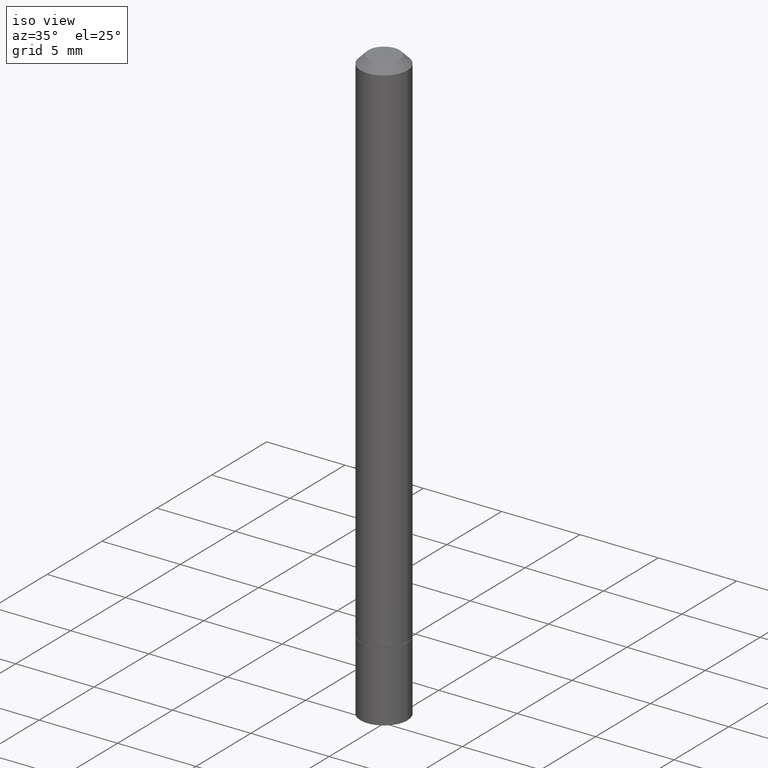
[diagram: clean part render]
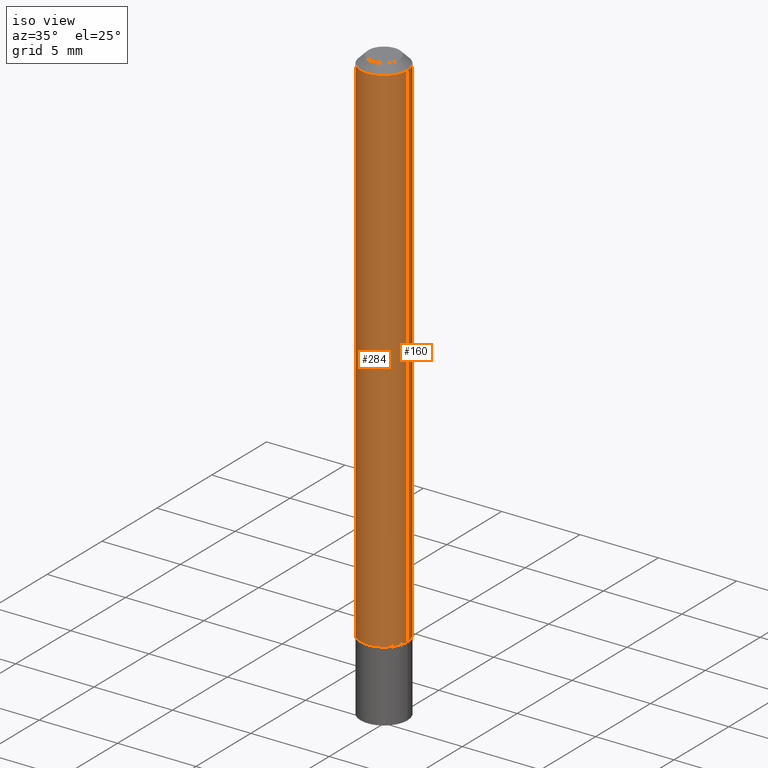
[diagram: same view with one multi-face feature highlighted, each face labeled with its STEP entity id]
A machine part, iso view. The highlighted faces form ONE feature: a constant-radius fillet chain: 2 tangent blend faces with common blend radius 1.4999 mm. The faces share edges in the B-rep.
Their STEP definitions:
[1] entity #284 (Cylinder):
#8 = LINE ( 'NONE', #319, #134 ) ;
#9 = DIRECTION ( 'NONE',  ( -2.445468806185136877E-29, 3.491481338843145188E-15, 1.000000000000000000 ) ) ;
#32 = ORIENTED_EDGE ( 'NONE', *, *, #91, .F. ) ;
#33 = ORIENTED_EDGE ( 'NONE', *, *, #271, .T. ) ;
#47 = EDGE_CURVE ( 'NONE', #96, #73, #67, .T. ) ;
#51 = CARTESIAN_POINT ( 'NONE',  ( 0.000000000000000000, 0.000000000000000000, 0.000000000000000000 ) ) ;
#67 = LINE ( 'NONE', #326, #111 ) ;
#72 = CIRCLE ( 'NONE', #148, 0.05904999999999999832 ) ;
#73 = VERTEX_POINT ( 'NONE', #294 ) ;
#76 = CARTESIAN_POINT ( 'NONE',  ( 0.05904999999999999832, -5.013767202578754676E-15, -1.317899999999999627 ) ) ;
#80 = CIRCLE ( 'NONE', #282, 0.05904999999999994975 ) ;
#91 = EDGE_CURVE ( 'NONE', #73, #128, #80, .T. ) ;
#96 = VERTEX_POINT ( 'NONE', #249 ) ;
#107 = DIRECTION ( 'NONE',  ( 1.000000000000000000, -6.982962677686266711E-15, 0.000000000000000000 ) ) ;
#111 = VECTOR ( 'NONE', #9, 39.37007874015748143 ) ;
#114 = AXIS2_PLACEMENT_3D ( 'NONE', #51, #269, #122 ) ;
#120 = DIRECTION ( 'NONE',  ( -2.445468806185136877E-29, 3.491481338843145188E-15, 1.000000000000000000 ) ) ;
#121 = VERTEX_POINT ( 'NONE', #76 ) ;
#122 = DIRECTION ( 'NONE',  ( 1.000000000000000000, -6.982962677686267499E-15, 4.876176775795936353E-29 ) ) ;
#128 = VERTEX_POINT ( 'NONE', #164 ) ;
#132 = DIRECTION ( 'NONE',  ( 1.000000000000000000, -6.982962677686273021E-15, 0.000000000000000000 ) ) ;
#134 = VECTOR ( 'NONE', #120, 39.37007874015748143 ) ;
#144 = EDGE_LOOP ( 'NONE', ( #204, #33, #281, #32 ) ) ;
#148 = AXIS2_PLACEMENT_3D ( 'NONE', #219, #298, #132 ) ;
#164 = CARTESIAN_POINT ( 'NONE',  ( 0.05904999999999994975, -4.749420335452716734E-16, -0.02000000000000006287 ) ) ;
#184 = CARTESIAN_POINT ( 'NONE',  ( 4.890937612370288923E-31, -6.982962677686312563E-17, -0.02000000000000006287 ) ) ;
#189 = FACE_OUTER_BOUND ( 'NONE', #144, .T. ) ;
#204 = ORIENTED_EDGE ( 'NONE', *, *, #47, .F. ) ;
#219 = CARTESIAN_POINT ( 'NONE',  ( 3.222883339671390452E-29, -4.601423256461380545E-15, -1.317899999999999627 ) ) ;
#249 = CARTESIAN_POINT ( 'NONE',  ( -0.05904999999999999832, -1.916050956152782034E-15, -1.317899999999999627 ) ) ;
#269 = DIRECTION ( 'NONE',  ( -2.445468806185136597E-29, 3.491481338843145583E-15, 1.000000000000000000 ) ) ;
#271 = EDGE_CURVE ( 'NONE', #96, #121, #72, .T. ) ;
#281 = ORIENTED_EDGE ( 'NONE', *, *, #328, .T. ) ;
#282 = AXIS2_PLACEMENT_3D ( 'NONE', #184, #295, #107 ) ;
#284 = ADVANCED_FACE ( 'NONE', ( #189 ), #316, .T. ) ;
#294 = CARTESIAN_POINT ( 'NONE',  ( -0.05904999999999994975, 3.425143193405105373E-16, -0.02000000000000006287 ) ) ;
#295 = DIRECTION ( 'NONE',  ( -2.445468806185136597E-29, 3.491481338843145583E-15, 1.000000000000000000 ) ) ;
#298 = DIRECTION ( 'NONE',  ( -2.445468806185136597E-29, 3.491481338843145583E-15, 1.000000000000000000 ) ) ;
#316 = CYLINDRICAL_SURFACE ( 'NONE', #114, 0.05904999999999997057 ) ;
#319 = CARTESIAN_POINT ( 'NONE',  ( 0.05904999999999997057, -4.123439461173738848E-16, 2.879382386107498819E-30 ) ) ;
#326 = CARTESIAN_POINT ( 'NONE',  ( -0.05904999999999997057, 4.195754854663389506E-16, -2.904631170795520841E-30 ) ) ;
#328 = EDGE_CURVE ( 'NONE', #121, #128, #8, .T. ) ;
[2] entity #160 (Cylinder):
#6 = EDGE_LOOP ( 'NONE', ( #256, #145, #141, #150 ) ) ;
#8 = LINE ( 'NONE', #319, #134 ) ;
#9 = DIRECTION ( 'NONE',  ( -2.445468806185136877E-29, 3.491481338843145188E-15, 1.000000000000000000 ) ) ;
#41 = CARTESIAN_POINT ( 'NONE',  ( 0.000000000000000000, 0.000000000000000000, 0.000000000000000000 ) ) ;
#44 = AXIS2_PLACEMENT_3D ( 'NONE', #179, #216, #49 ) ;
#47 = EDGE_CURVE ( 'NONE', #96, #73, #67, .T. ) ;
#49 = DIRECTION ( 'NONE',  ( 1.000000000000000000, -6.982962677686266711E-15, 0.000000000000000000 ) ) ;
#63 = AXIS2_PLACEMENT_3D ( 'NONE', #41, #265, #66 ) ;
#66 = DIRECTION ( 'NONE',  ( 1.000000000000000000, -6.982962677686267499E-15, 4.876176775795936353E-29 ) ) ;
#67 = LINE ( 'NONE', #326, #111 ) ;
#73 = VERTEX_POINT ( 'NONE', #294 ) ;
#74 = AXIS2_PLACEMENT_3D ( 'NONE', #250, #297, #166 ) ;
#76 = CARTESIAN_POINT ( 'NONE',  ( 0.05904999999999999832, -5.013767202578754676E-15, -1.317899999999999627 ) ) ;
#96 = VERTEX_POINT ( 'NONE', #249 ) ;
#111 = VECTOR ( 'NONE', #9, 39.37007874015748143 ) ;
#120 = DIRECTION ( 'NONE',  ( -2.445468806185136877E-29, 3.491481338843145188E-15, 1.000000000000000000 ) ) ;
#121 = VERTEX_POINT ( 'NONE', #76 ) ;
#128 = VERTEX_POINT ( 'NONE', #164 ) ;
#134 = VECTOR ( 'NONE', #120, 39.37007874015748143 ) ;
#141 = ORIENTED_EDGE ( 'NONE', *, *, #255, .F. ) ;
#143 = CIRCLE ( 'NONE', #74, 0.05904999999999999832 ) ;
#145 = ORIENTED_EDGE ( 'NONE', *, *, #47, .T. ) ;
#150 = ORIENTED_EDGE ( 'NONE', *, *, #328, .F. ) ;
#160 = ADVANCED_FACE ( 'NONE', ( #252 ), #182, .T. ) ;
#164 = CARTESIAN_POINT ( 'NONE',  ( 0.05904999999999994975, -4.749420335452716734E-16, -0.02000000000000006287 ) ) ;
#166 = DIRECTION ( 'NONE',  ( 1.000000000000000000, -6.982962677686273021E-15, 0.000000000000000000 ) ) ;
#179 = CARTESIAN_POINT ( 'NONE',  ( 4.890937612370288923E-31, -6.982962677686312563E-17, -0.02000000000000006287 ) ) ;
#182 = CYLINDRICAL_SURFACE ( 'NONE', #63, 0.05904999999999997057 ) ;
#201 = CIRCLE ( 'NONE', #44, 0.05904999999999994975 ) ;
#216 = DIRECTION ( 'NONE',  ( -2.445468806185136597E-29, 3.491481338843145583E-15, 1.000000000000000000 ) ) ;
#249 = CARTESIAN_POINT ( 'NONE',  ( -0.05904999999999999832, -1.916050956152782034E-15, -1.317899999999999627 ) ) ;
#250 = CARTESIAN_POINT ( 'NONE',  ( 3.222883339671390452E-29, -4.601423256461380545E-15, -1.317899999999999627 ) ) ;
#252 = FACE_OUTER_BOUND ( 'NONE', #6, .T. ) ;
#255 = EDGE_CURVE ( 'NONE', #128, #73, #201, .T. ) ;
#256 = ORIENTED_EDGE ( 'NONE', *, *, #339, .T. ) ;
#265 = DIRECTION ( 'NONE',  ( -2.445468806185136597E-29, 3.491481338843145583E-15, 1.000000000000000000 ) ) ;
#294 = CARTESIAN_POINT ( 'NONE',  ( -0.05904999999999994975, 3.425143193405105373E-16, -0.02000000000000006287 ) ) ;
#297 = DIRECTION ( 'NONE',  ( -2.445468806185136597E-29, 3.491481338843145583E-15, 1.000000000000000000 ) ) ;
#319 = CARTESIAN_POINT ( 'NONE',  ( 0.05904999999999997057, -4.123439461173738848E-16, 2.879382386107498819E-30 ) ) ;
#326 = CARTESIAN_POINT ( 'NONE',  ( -0.05904999999999997057, 4.195754854663389506E-16, -2.904631170795520841E-30 ) ) ;
#328 = EDGE_CURVE ( 'NONE', #121, #128, #8, .T. ) ;
#339 = EDGE_CURVE ( 'NONE', #121, #96, #143, .T. ) ;